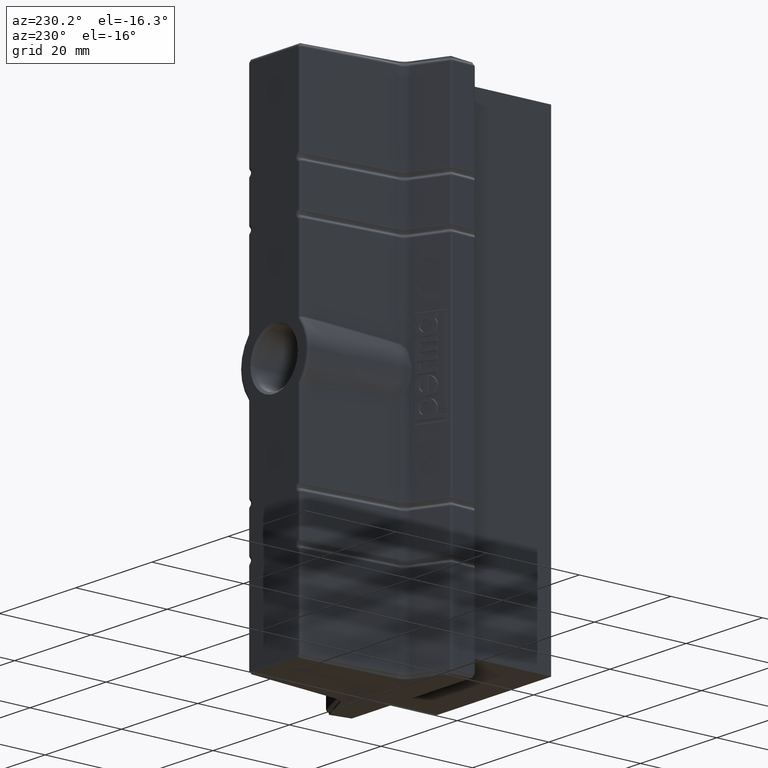
[diagram: clean part render]
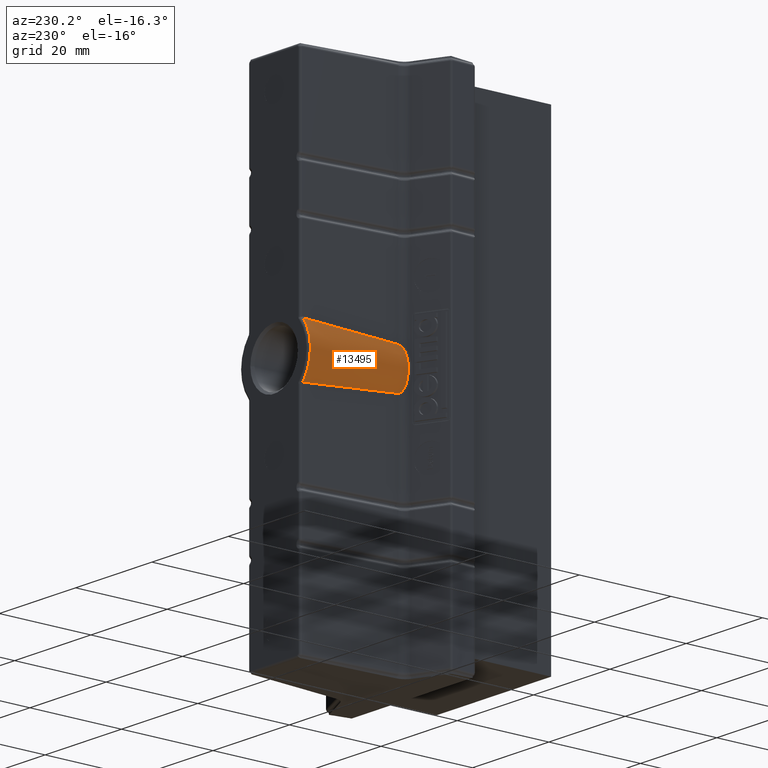
[diagram: same view with one face highlighted and labeled with its STEP entity id]
A machine part, auxiliary view. The second image highlights one B-rep face of the part: STEP entity #13495.
In plain terms, the highlighted conical surface has half-angle 1.5 deg.
Its self-contained STEP definition (entity closure, byte-faithful):
#3165=ELLIPSE('',#14699,8.15798768481448,7.8414434328933);
#3786=FACE_OUTER_BOUND('',#4674,.T.);
#4674=EDGE_LOOP('',(#10925,#10926,#10927,#10928,#10929,#10930));
#5240=B_SPLINE_CURVE_WITH_KNOTS('',3,(#21083,#21084,#21085,#21086,#21087,
#21088,#21089,#21090,#21091,#21092,#21093,#21094,#21095),.UNSPECIFIED.,
 .F.,.F.,(4,3,3,3,4),(0.651632593373313,0.737206069307442,0.822427759045183,
0.906877708507183,0.927961375682406),.UNSPECIFIED.);
#5241=B_SPLINE_CURVE_WITH_KNOTS('',3,(#21113,#21114,#21115,#21116,#21117,
#21118,#21119,#21120,#21121,#21122,#21123,#21124,#21125),.UNSPECIFIED.,
 .F.,.F.,(4,3,3,3,4),(-0.927961375687308,-0.843359877408273,-0.758213789616809,
-0.672569621748464,-0.651632593373303),.UNSPECIFIED.);
#5365=B_SPLINE_CURVE_WITH_KNOTS('',3,(#25377,#25378,#25379,#25380,#25381,
#25382),.UNSPECIFIED.,.F.,.F.,(4,1,1,4),(7.95020810697576E-14,0.041866515275766,
0.125599545827139,0.293065606929885),.UNSPECIFIED.);
#5412=B_SPLINE_CURVE_WITH_KNOTS('',3,(#25740,#25741,#25742,#25743,#25744,
#25745,#25746),.UNSPECIFIED.,.F.,.F.,(4,1,1,1,4),(0.739915122655153,0.865522332937761,
0.949260473126166,0.991129543220369,1.03299861331457),.UNSPECIFIED.);
#5617=CIRCLE('',#14221,8.94728542310397);
#6002=VERTEX_POINT('',#20325);
#6004=VERTEX_POINT('',#20331);
#6073=VERTEX_POINT('',#21081);
#6074=VERTEX_POINT('',#21112);
#6394=VERTEX_POINT('',#25120);
#6395=VERTEX_POINT('',#25122);
#7261=EDGE_CURVE('',#6002,#6004,#5617,.T.);
#7379=EDGE_CURVE('',#6073,#6002,#5240,.T.);
#7380=EDGE_CURVE('',#6004,#6074,#5241,.T.);
#7945=EDGE_CURVE('',#6395,#6394,#3165,.T.);
#7993=EDGE_CURVE('',#6074,#6395,#5365,.T.);
#8088=EDGE_CURVE('',#6394,#6073,#5412,.T.);
#10925=ORIENTED_EDGE('',*,*,#7261,.F.);
#10926=ORIENTED_EDGE('',*,*,#7379,.F.);
#10927=ORIENTED_EDGE('',*,*,#8088,.F.);
#10928=ORIENTED_EDGE('',*,*,#7945,.F.);
#10929=ORIENTED_EDGE('',*,*,#7993,.F.);
#10930=ORIENTED_EDGE('',*,*,#7380,.F.);
#13114=CONICAL_SURFACE('',#14754,9.,0.0261799387799149);
#13495=ADVANCED_FACE('',(#3786),#13114,.T.);
#14221=AXIS2_PLACEMENT_3D('',#20335,#15525,#15526);
#14699=AXIS2_PLACEMENT_3D('',#25124,#16724,#16725);
#14754=AXIS2_PLACEMENT_3D('',#25747,#16891,#16892);
#15525=DIRECTION('center_axis',(-6.20424504262657E-17,1.,-1.89842566324828E-31));
#15526=DIRECTION('ref_axis',(-1.,-6.20424504262657E-17,-3.47437722387088E-15));
#16724=DIRECTION('center_axis',(0.440416037623864,-0.897793803611773,-2.85187263615131E-15));
#16725=DIRECTION('ref_axis',(-1.50807111170871E-10,-7.39758040293399E-11,
-1.));
#16891=DIRECTION('center_axis',(5.55111512312578E-17,-1.,0.));
#16892=DIRECTION('ref_axis',(-1.,-5.55111512312578E-17,1.39889325749569E-11));
#20325=CARTESIAN_POINT('',(-6.95362703042975,2.01308847436133,28.1196369985771));
#20331=CARTESIAN_POINT('',(-6.9536270302664,2.01308847473604,39.3803630015942));
#20335=CARTESIAN_POINT('Origin',(1.11022302462516E-15,2.01308847415394,
33.75));
#21081=CARTESIAN_POINT('',(-8.43709322037311,-17.5645766818877,29.4714476345405));
#21083=CARTESIAN_POINT('Ctrl Pts',(-8.43709322037637,-17.5645766818867,
29.471447634547));
#21084=CARTESIAN_POINT('Ctrl Pts',(-8.30564692124522,-15.8332916914401,
29.3124790722976));
#21085=CARTESIAN_POINT('Ctrl Pts',(-8.16687852778639,-14.0043300920243,
29.1589326412441));
#21086=CARTESIAN_POINT('Ctrl Pts',(-8.02133657686553,-12.085103128986,29.011373795719));
#21087=CARTESIAN_POINT('Ctrl Pts',(-7.87639293808253,-10.1737659652804,
28.8644215536354));
#21088=CARTESIAN_POINT('Ctrl Pts',(-7.72473131095986,-8.17290406088945,
28.7234078094083));
#21089=CARTESIAN_POINT('Ctrl Pts',(-7.56693072436219,-6.08983763515275,
28.5888553932841));
#21090=CARTESIAN_POINT('Ctrl Pts',(-7.4105591292406,-4.02563479053876,28.4555214406643));
#21091=CARTESIAN_POINT('Ctrl Pts',(-7.24815927382272,-1.88070951890454,
28.3285323915259));
#21092=CARTESIAN_POINT('Ctrl Pts',(-7.08033112365638,0.337815033627539,
28.2083611207961));
#21093=CARTESIAN_POINT('Ctrl Pts',(-7.0384313607402,0.891689057041768,28.1783593139006));
#21094=CARTESIAN_POINT('Ctrl Pts',(-6.99619343364741,1.45015048548971,28.1487822760959));
#21095=CARTESIAN_POINT('Ctrl Pts',(-6.95362703610108,2.01308847498736,28.1196370023859));
#21112=CARTESIAN_POINT('',(-8.43709322037645,-17.5645766818873,38.0285523654529));
#21113=CARTESIAN_POINT('Ctrl Pts',(-6.9536270360714,2.01308847537999,39.3803629976344));
#21114=CARTESIAN_POINT('Ctrl Pts',(-7.12443133585687,-0.245787883939191,
39.2634130475565));
#21115=CARTESIAN_POINT('Ctrl Pts',(-7.28994390201799,-2.43258531563438,
39.1395081356815));
#21116=CARTESIAN_POINT('Ctrl Pts',(-7.44955235370139,-4.54014225641131,
39.0091144314712));
#21117=CARTESIAN_POINT('Ctrl Pts',(-7.61018822322785,-6.66126578206132,
38.8778813680858));
#21118=CARTESIAN_POINT('Ctrl Pts',(-7.76484372054758,-8.7021253731584,38.7400758069911));
#21119=CARTESIAN_POINT('Ctrl Pts',(-7.91293215694534,-10.655420274845,38.5962102666632));
#21120=CARTESIAN_POINT('Ctrl Pts',(-8.06188686802112,-12.6201413888221,
38.4515031543824));
#21121=CARTESIAN_POINT('Ctrl Pts',(-8.20419746228157,-14.4962703606026,
38.3006650028622));
#21122=CARTESIAN_POINT('Ctrl Pts',(-8.33930480773632,-16.2763775624551,
38.1442538592889));
#21123=CARTESIAN_POINT('Ctrl Pts',(-8.37233386734289,-16.7115520281969,
38.1060167599896));
#21124=CARTESIAN_POINT('Ctrl Pts',(-8.40493261377869,-17.1409879170886,
38.0674467689143));
#21125=CARTESIAN_POINT('Ctrl Pts',(-8.43709322037643,-17.5645766818873,
38.0285523654529));
#25120=CARTESIAN_POINT('',(-9.25690161195021,-18.8063497188307,31.6484292183638));
#25122=CARTESIAN_POINT('',(-9.25690161175863,-18.8063497187518,35.8515707824708));
#25124=CARTESIAN_POINT('Origin',(-2.45450751858533,-15.4694103894396,33.7500000001049));
#25377=CARTESIAN_POINT('Ctrl Pts',(-8.43709322037314,-17.5645766818882,
38.0285523654594));
#25378=CARTESIAN_POINT('Ctrl Pts',(-8.44760680910028,-17.7030516216872,
38.0158374385647));
#25379=CARTESIAN_POINT('Ctrl Pts',(-8.53921146931096,-18.0953990004809,
37.8595936881264));
#25380=CARTESIAN_POINT('Ctrl Pts',(-8.89329906795835,-18.6166213270383,
37.1220057405663));
#25381=CARTESIAN_POINT('Ctrl Pts',(-9.1386578173555,-18.7483447924356,36.3655448831226));
#25382=CARTESIAN_POINT('Ctrl Pts',(-9.25690161175864,-18.8063497187518,
35.8515707824707));
#25740=CARTESIAN_POINT('Ctrl Pts',(-9.25690161196684,-18.8063497188539,
31.6484292184342));
#25741=CARTESIAN_POINT('Ctrl Pts',(-9.16820821536857,-18.7628408484035,
31.2629027812848));
#25742=CARTESIAN_POINT('Ctrl Pts',(-8.97940685552648,-18.6555287013167,
30.6322319042875));
#25743=CARTESIAN_POINT('Ctrl Pts',(-8.68837784437101,-18.3370011002669,
29.9455270114722));
#25744=CARTESIAN_POINT('Ctrl Pts',(-8.5061555654923,-17.9642537139443,29.5841846754777));
#25745=CARTESIAN_POINT('Ctrl Pts',(-8.44760745067046,-17.7030600718368,
29.4841633373375));
#25746=CARTESIAN_POINT('Ctrl Pts',(-8.43709322037311,-17.5645766818877,
29.4714476345405));
#25747=CARTESIAN_POINT('Origin',(1.11022302462516E-15,1.11022302462516E-15,
33.75));